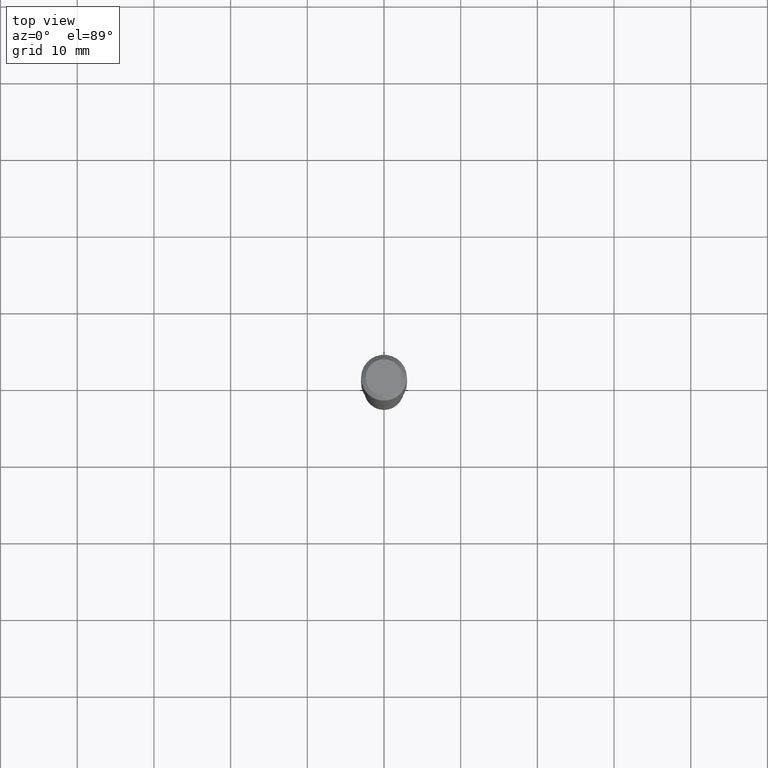
[diagram: clean part render]
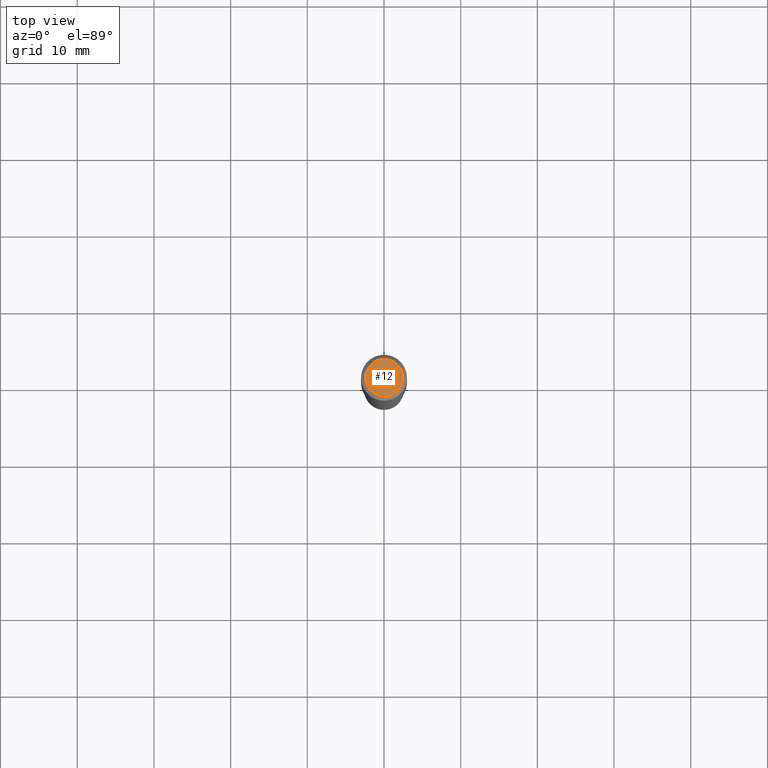
[diagram: same view with one face highlighted and labeled with its STEP entity id]
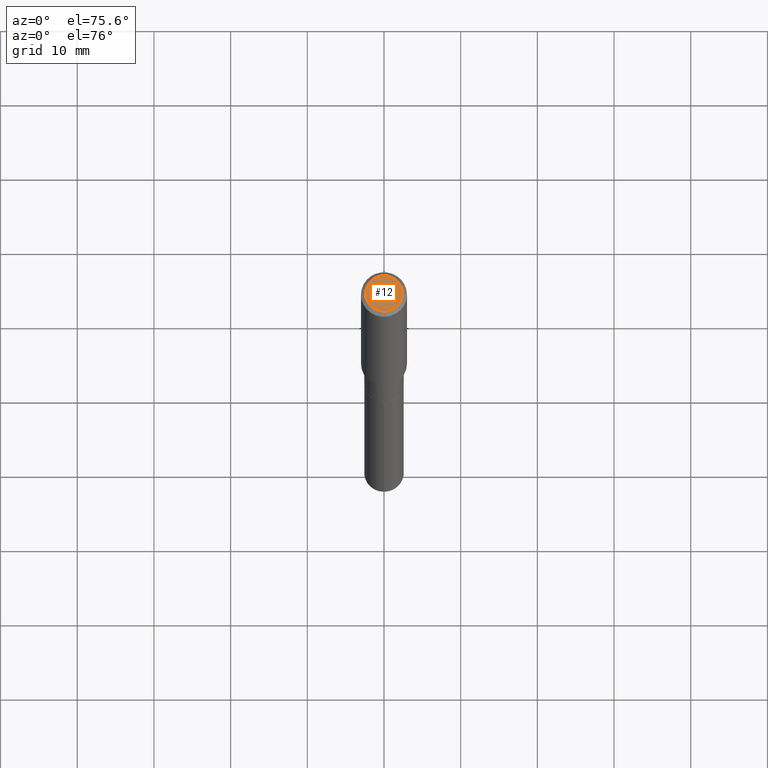
[diagram: same view with one face highlighted and labeled with its STEP entity id]
A machine part, top view. The second image highlights one B-rep face of the part: STEP entity #12.
A second angle (auxiliary view) of the same face is appended — the face is thin or edge-on in the first view.
In plain terms, the highlighted planar face has unit normal (0, -0, -1).
Its self-contained STEP definition (entity closure, byte-faithful):
#1 = DIRECTION ( 'NONE',  ( -2.445468806185136597E-29, 3.491481338843145583E-15, 1.000000000000000000 ) ) ;
#12 = ADVANCED_FACE ( 'NONE', ( #168 ), #27, .F. ) ;
#27 = PLANE ( 'NONE',  #66 ) ;
#51 = VERTEX_POINT ( 'NONE', #211 ) ;
#66 = AXIS2_PLACEMENT_3D ( 'NONE', #289, #443, #100 ) ;
#100 = DIRECTION ( 'NONE',  ( -1.000000000000000000, 6.982962677686265922E-15, -4.876176775795935793E-29 ) ) ;
#123 = VERTEX_POINT ( 'NONE', #257 ) ;
#132 = CARTESIAN_POINT ( 'NONE',  ( 6.603013411620882309E-46, -9.427353171913646324E-32, -2.700101262760083747E-17 ) ) ;
#154 = EDGE_LOOP ( 'NONE', ( #157, #240 ) ) ;
#157 = ORIENTED_EDGE ( 'NONE', *, *, #473, .T. ) ;
#168 = FACE_OUTER_BOUND ( 'NONE', #154, .T. ) ;
#173 = DIRECTION ( 'NONE',  ( 1.000000000000000000, -6.982962677686267499E-15, 4.875432709231658792E-29 ) ) ;
#179 = CIRCLE ( 'NONE', #300, 0.09447999999999998066 ) ;
#204 = DIRECTION ( 'NONE',  ( -2.445468806185136597E-29, 3.491481338843145583E-15, 1.000000000000000000 ) ) ;
#211 = CARTESIAN_POINT ( 'NONE',  ( 0.09447999999999998066, -7.704367267948738690E-16, -2.700101262759583929E-17 ) ) ;
#228 = AXIS2_PLACEMENT_3D ( 'NONE', #132, #204, #173 ) ;
#240 = ORIENTED_EDGE ( 'NONE', *, *, #333, .T. ) ;
#257 = CARTESIAN_POINT ( 'NONE',  ( -0.09447999999999998066, 7.009847083995354710E-16, -2.700101262760559836E-17 ) ) ;
#289 = CARTESIAN_POINT ( 'NONE',  ( 3.301506705810441154E-46, -4.713676585956823162E-32, -1.350050631380041873E-17 ) ) ;
#300 = AXIS2_PLACEMENT_3D ( 'NONE', #458, #1, #428 ) ;
#333 = EDGE_CURVE ( 'NONE', #51, #123, #179, .T. ) ;
#398 = CIRCLE ( 'NONE', #228, 0.09447999999999998066 ) ;
#428 = DIRECTION ( 'NONE',  ( 1.000000000000000000, -6.982962677686267499E-15, 4.875432709231658792E-29 ) ) ;
#443 = DIRECTION ( 'NONE',  ( 2.438088387897960049E-29, -3.491481338843145188E-15, -1.000000000000000000 ) ) ;
#458 = CARTESIAN_POINT ( 'NONE',  ( 6.603013411620882309E-46, -9.427353171913646324E-32, -2.700101262760083747E-17 ) ) ;
#473 = EDGE_CURVE ( 'NONE', #123, #51, #398, .T. ) ;